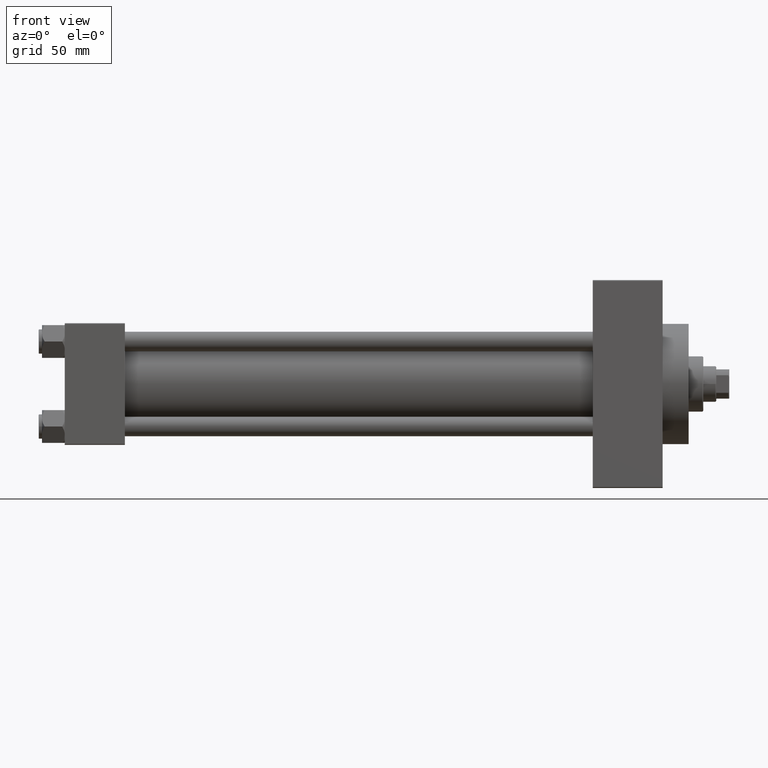
[diagram: clean part render]
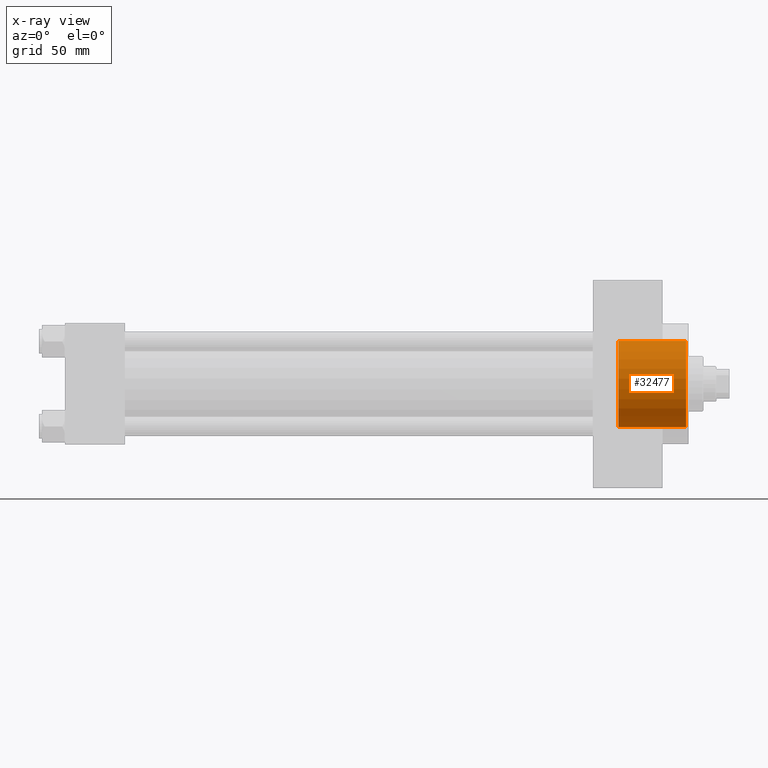
[diagram: x-ray — body ghosted, one internal face saturated and labeled with its STEP entity id]
A machine part, front view, then the same camera in x-ray: the body is ghosted and one INTERNAL B-rep face — a face not visible from any outside direction — is saturated and labeled: STEP entity #32477.
In plain terms, the highlighted cylindrical surface (partial cylindrical patch) has radius 26.5 mm, axis along (1, 0, 0).
Its self-contained STEP definition (entity closure, byte-faithful):
#4016 = VERTEX_POINT ( 'NONE', #12805 ) ;
#5578 = CARTESIAN_POINT ( 'NONE',  ( 382.4999999999998295, 3.245314017740486554E-15, 26.50000000000000355 ) ) ;
#5588 = ORIENTED_EDGE ( 'NONE', *, *, #24886, .F. ) ;
#5998 = VERTEX_POINT ( 'NONE', #19165 ) ;
#6033 = DIRECTION ( 'NONE',  ( 1.000000000000000000, 0.000000000000000000, 0.000000000000000000 ) ) ;
#6180 = EDGE_CURVE ( 'NONE', #33466, #38184, #36619, .T. ) ;
#7621 = DIRECTION ( 'NONE',  ( 0.000000000000000000, 0.000000000000000000, -1.000000000000000000 ) ) ;
#8980 = DIRECTION ( 'NONE',  ( 1.000000000000000000, 0.000000000000000000, 0.000000000000000000 ) ) ;
#10057 = CYLINDRICAL_SURFACE ( 'NONE', #20113, 26.50000000000000355 ) ;
#10980 = DIRECTION ( 'NONE',  ( 1.000000000000000000, -0.000000000000000000, -0.000000000000000000 ) ) ;
#11857 = CIRCLE ( 'NONE', #41693, 26.50000000000000355 ) ;
#12340 = CARTESIAN_POINT ( 'NONE',  ( 382.4999999999998295, 0.000000000000000000, 0.000000000000000000 ) ) ;
#12805 = CARTESIAN_POINT ( 'NONE',  ( 340.7399999999999523, 0.000000000000000000, -26.50000000000000355 ) ) ;
#16714 = LINE ( 'NONE', #23424, #20011 ) ;
#18720 = AXIS2_PLACEMENT_3D ( 'NONE', #12340, #8980, #31018 ) ;
#19165 = CARTESIAN_POINT ( 'NONE',  ( 382.4999999999998295, 0.000000000000000000, -26.50000000000000355 ) ) ;
#20011 = VECTOR ( 'NONE', #27718, 1000.000000000000000 ) ;
#20113 = AXIS2_PLACEMENT_3D ( 'NONE', #24667, #23966, #21075 ) ;
#21075 = DIRECTION ( 'NONE',  ( 0.000000000000000000, 0.000000000000000000, -1.000000000000000000 ) ) ;
#23424 = CARTESIAN_POINT ( 'NONE',  ( 340.7399999999999523, 0.000000000000000000, -26.50000000000000355 ) ) ;
#23966 = DIRECTION ( 'NONE',  ( 1.000000000000000000, -0.000000000000000000, -0.000000000000000000 ) ) ;
#24271 = ORIENTED_EDGE ( 'NONE', *, *, #36317, .T. ) ;
#24667 = CARTESIAN_POINT ( 'NONE',  ( 340.7399999999999523, 0.000000000000000000, 0.000000000000000000 ) ) ;
#24886 = EDGE_CURVE ( 'NONE', #4016, #5998, #16714, .T. ) ;
#24977 = ORIENTED_EDGE ( 'NONE', *, *, #36589, .F. ) ;
#26888 = CARTESIAN_POINT ( 'NONE',  ( 340.7399999999999523, 3.245314017740486554E-15, 26.50000000000000355 ) ) ;
#27315 = VECTOR ( 'NONE', #10980, 1000.000000000000000 ) ;
#27718 = DIRECTION ( 'NONE',  ( 1.000000000000000000, -0.000000000000000000, -0.000000000000000000 ) ) ;
#28255 = FACE_OUTER_BOUND ( 'NONE', #43562, .T. ) ;
#28349 = ORIENTED_EDGE ( 'NONE', *, *, #6180, .T. ) ;
#29645 = CARTESIAN_POINT ( 'NONE',  ( 340.7399999999999523, 3.245314017740486554E-15, 26.50000000000000355 ) ) ;
#30182 = CIRCLE ( 'NONE', #18720, 26.50000000000000355 ) ;
#31018 = DIRECTION ( 'NONE',  ( 0.000000000000000000, 0.000000000000000000, -1.000000000000000000 ) ) ;
#32477 = ADVANCED_FACE ( 'NONE', ( #28255 ), #10057, .F. ) ;
#33466 = VERTEX_POINT ( 'NONE', #26888 ) ;
#36317 = EDGE_CURVE ( 'NONE', #38184, #5998, #30182, .T. ) ;
#36589 = EDGE_CURVE ( 'NONE', #33466, #4016, #11857, .T. ) ;
#36619 = LINE ( 'NONE', #29645, #27315 ) ;
#38184 = VERTEX_POINT ( 'NONE', #5578 ) ;
#39104 = CARTESIAN_POINT ( 'NONE',  ( 340.7399999999999523, 0.000000000000000000, 0.000000000000000000 ) ) ;
#41693 = AXIS2_PLACEMENT_3D ( 'NONE', #39104, #6033, #7621 ) ;
#43562 = EDGE_LOOP ( 'NONE', ( #24977, #28349, #24271, #5588 ) ) ;